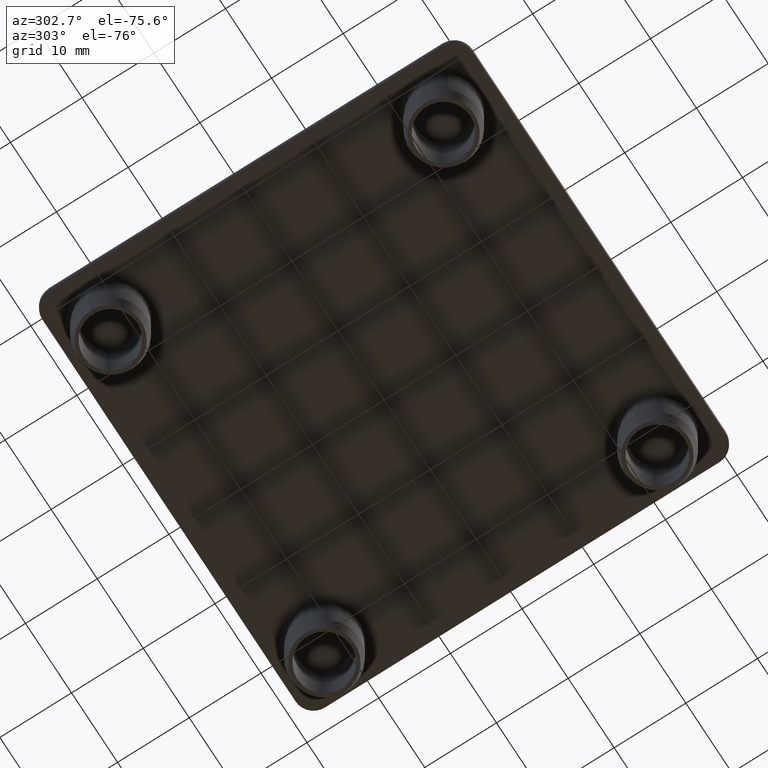
[diagram: clean part render]
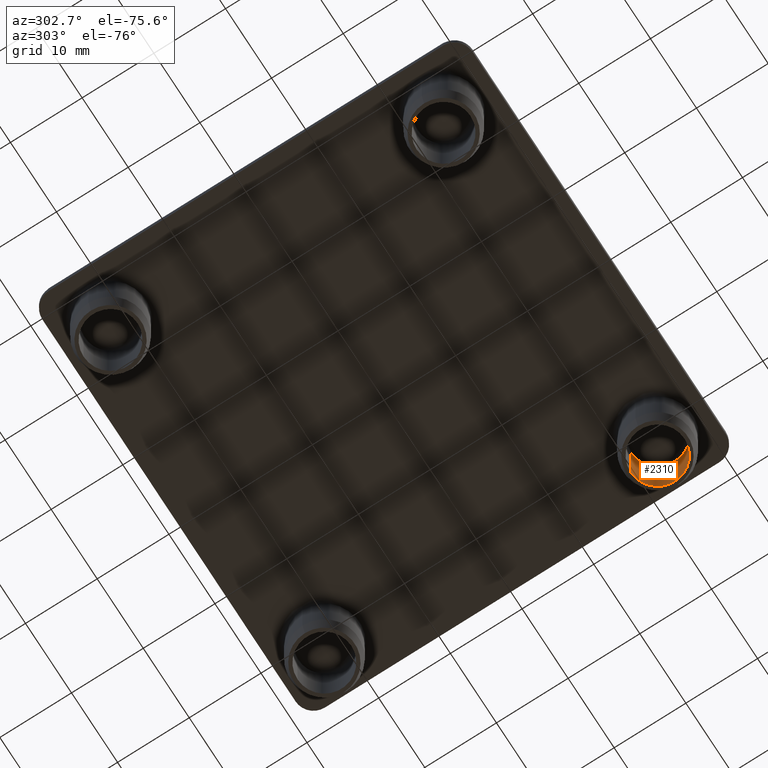
[diagram: same view with one face highlighted and labeled with its STEP entity id]
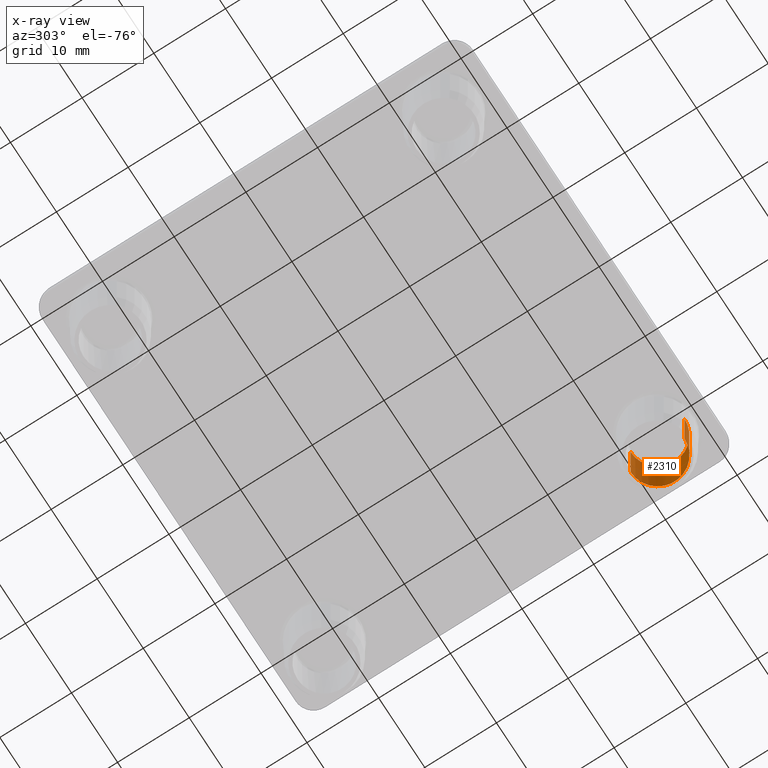
[diagram: x-ray of the same camera — body ghosted, the highlighted face saturated]
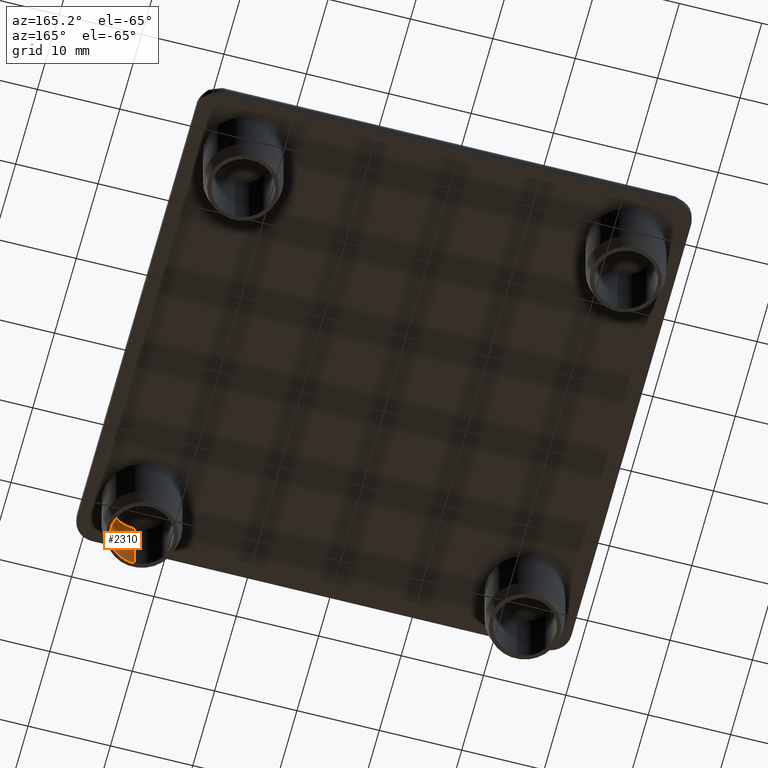
[diagram: same view with one face highlighted and labeled with its STEP entity id]
A machine part, auxiliary view. The second image highlights one B-rep face of the part: STEP entity #2310.
The next image is the same camera in x-ray: the body ghosted, the highlighted face saturated — about 0% of this face is hidden behind the body in this view.
A second angle (auxiliary view) of the same face is appended — the face is thin or edge-on in the first view.
In plain terms, the highlighted cylindrical surface (edge-blend (fillet) strip) has radius 3.75 mm, axis along (-0, 0, 1).
Its self-contained STEP definition (entity closure, byte-faithful):
#817=CARTESIAN_POINT('',(23.230000000000000,3.020000000000003,-0.499999999999996));
#818=VERTEX_POINT('',#817);
#844=CARTESIAN_POINT('',(26.980000000000000,6.769999999999996,-0.499999999999996));
#845=VERTEX_POINT('',#844);
#853=CARTESIAN_POINT('',(23.230000000000000,6.769999999999996,-0.499999999999996));
#854=DIRECTION('',(-1.224647E-016,0.0,1.0));
#855=DIRECTION('',(1.0,0.0,1.224647E-016));
#856=AXIS2_PLACEMENT_3D('',#853,#854,#855);
#857=CIRCLE('',#856,3.749999999999997);
#858=EDGE_CURVE('',#818,#845,#857,.T.);
#1108=CARTESIAN_POINT('',(23.230000000000000,10.519999999999996,-9.999999999999996));
#1109=VERTEX_POINT('',#1108);
#1110=CARTESIAN_POINT('',(23.230000000000000,3.020000000000003,-9.999999999999996));
#1111=VERTEX_POINT('',#1110);
#1119=CARTESIAN_POINT('',(23.230000000000000,10.519999999999996,-0.499999999999996));
#1120=VERTEX_POINT('',#1119);
#1121=CARTESIAN_POINT('',(23.230000000000000,10.519999999999996,-9.999999999999996));
#1122=DIRECTION('',(0.0,0.0,1.0));
#1123=VECTOR('',#1122,9.500000000000000);
#1124=LINE('',#1121,#1123);
#1125=EDGE_CURVE('',#1109,#1120,#1124,.T.);
#1135=CARTESIAN_POINT('',(23.230000000000000,3.020000000000003,-9.999999999999996));
#1136=DIRECTION('',(0.0,0.0,1.0));
#1137=VECTOR('',#1136,9.500000000000000);
#1138=LINE('',#1135,#1137);
#1139=EDGE_CURVE('',#1111,#818,#1138,.T.);
#2155=CARTESIAN_POINT('',(23.230000000000000,6.769999999999996,-9.999999999999996));
#2156=DIRECTION('',(-1.224647E-016,0.0,1.0));
#2157=DIRECTION('',(0.0,-1.0,0.0));
#2158=AXIS2_PLACEMENT_3D('',#2155,#2156,#2157);
#2159=CIRCLE('',#2158,3.749999999999997);
#2160=EDGE_CURVE('',#1111,#1109,#2159,.T.);
#2292=CARTESIAN_POINT('',(23.230000000000000,6.769999999999996,-10.000000009999994));
#2293=DIRECTION('',(-1.224647E-016,0.0,1.0));
#2294=DIRECTION('',(-1.0,0.0,-1.224647E-016));
#2295=AXIS2_PLACEMENT_3D('',#2292,#2293,#2294);
#2296=CYLINDRICAL_SURFACE('',#2295,3.749999999999997);
#2297=ORIENTED_EDGE('',*,*,#1125,.F.);
#2298=ORIENTED_EDGE('',*,*,#2160,.F.);
#2299=ORIENTED_EDGE('',*,*,#1139,.T.);
#2300=ORIENTED_EDGE('',*,*,#858,.T.);
#2301=CARTESIAN_POINT('',(23.230000000000000,6.769999999999996,-0.499999999999996));
#2302=DIRECTION('',(-1.224647E-016,0.0,1.0));
#2303=DIRECTION('',(1.0,0.0,1.224647E-016));
#2304=AXIS2_PLACEMENT_3D('',#2301,#2302,#2303);
#2305=CIRCLE('',#2304,3.749999999999997);
#2306=EDGE_CURVE('',#845,#1120,#2305,.T.);
#2307=ORIENTED_EDGE('',*,*,#2306,.T.);
#2308=EDGE_LOOP('',(#2297,#2298,#2299,#2300,#2307));
#2309=FACE_OUTER_BOUND('',#2308,.T.);
#2310=ADVANCED_FACE('',(#2309),#2296,.F.);